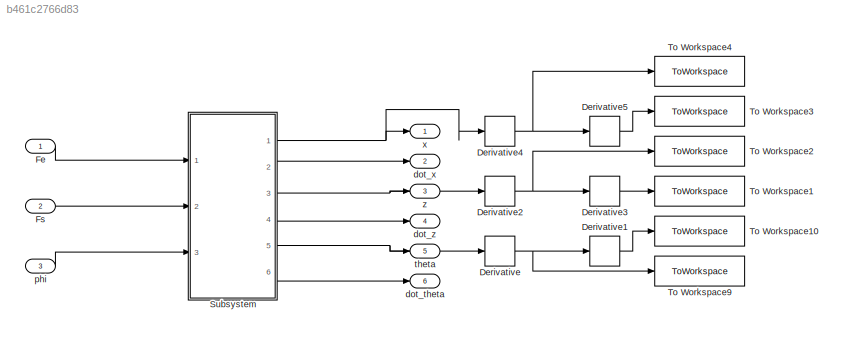
MODEL slx_b461c2766d83
KIND model
CONFIG AbsTol = auto
CONFIG EnableMultiTasking = off
CONFIG FixedStep = auto
CONFIG MaxStep = auto
CONFIG MinStep = auto
CONFIG RelTol = 1e-9
CONFIG SampleTimeConstraint = Unconstrained
CONFIG Solver = VariableStepAuto
CONFIG SolverName = VariableStepAuto
CONFIG StartTime = 0.0
CONFIG StopTime = 50
BLOCK [Derivative] Derivative
BLOCK [Derivative] Derivative1
BLOCK [Derivative] Derivative2
BLOCK [Derivative] Derivative3
BLOCK [Derivative] Derivative4
BLOCK [Derivative] Derivative5
BLOCK [Inport] Fe
  IconDisplay = Port number
BLOCK [Inport] Fs
  IconDisplay = Port number
  Port = 2
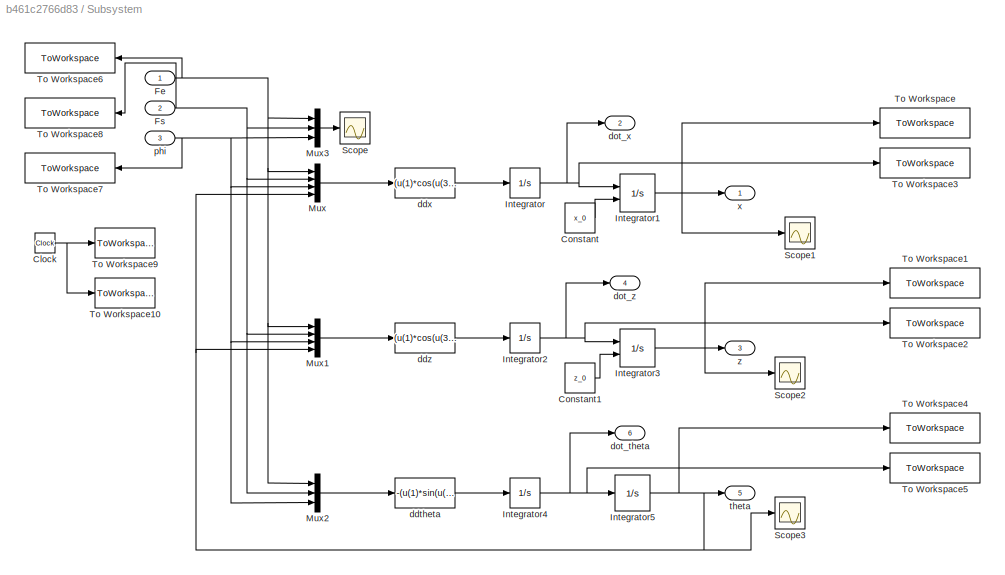
BLOCK [SubSystem] Subsystem
  Ports = [3, 6]
  RequestExecContextInheritance = off
BLOCK [Clock] Subsystem/Clock
BLOCK [Constant] Subsystem/Constant
  Value = x_0
BLOCK [Constant] Subsystem/Constant1
  Value = z_0
BLOCK [Inport] Subsystem/Fe
  IconDisplay = Port number
BLOCK [Inport] Subsystem/Fs
  IconDisplay = Port number
  Port = 2
BLOCK [Integrator] Subsystem/Integrator
  ContinuousStateAttributes = 'x_dot'
  Ports = [1, 1]
BLOCK [Integrator] Subsystem/Integrator1
  ContinuousStateAttributes = 'x'
  InitialConditionSource = external
  Ports = [2, 1]
BLOCK [Integrator] Subsystem/Integrator2
  ContinuousStateAttributes = 'z_dot'
  Ports = [1, 1]
BLOCK [Integrator] Subsystem/Integrator3
  ContinuousStateAttributes = 'z'
  InitialCondition = 50
  InitialConditionSource = external
  LimitOutput = on
  LowerSaturationLimit = 0
  Ports = [2, 1]
BLOCK [Integrator] Subsystem/Integrator4
  ContinuousStateAttributes = 'theta_dot'
  Ports = [1, 1]
BLOCK [Integrator] Subsystem/Integrator5
  Ports = [1, 1]
BLOCK [Mux] Subsystem/Mux
  DisplayOption = bar
  Ports = [4, 1]
BLOCK [Mux] Subsystem/Mux1
  DisplayOption = bar
  Ports = [4, 1]
BLOCK [Mux] Subsystem/Mux2
  DisplayOption = bar
  Inputs = 3
  Ports = [3, 1]
BLOCK [Mux] Subsystem/Mux3
  DisplayOption = bar
  Inputs = 3
  Ports = [3, 1]
BLOCK [Scope] Subsystem/Scope
  Floating = off
  NumInputPorts = 1
  Ports = [1]
  ScopeSpecificationString = Simulink.scopes.TimeScopeBlockCfg('CurrentConfiguration', extmgr.ConfigurationSet(extmgr.Configuration('Core','General UI',true),extmgr.Configuration('Core','Source UI',true),extmgr.Configuration('Sources','WiredSimulink',true),extmgr.Configuration('Visuals','Time Domain',true,'SerializedDisplays',{struct('MinYLimReal','-0.2','MaxYLimReal','0.2','YLabelReal','','MinYLimMag','975067.9392','MaxYLimM...<+1475ch>
BLOCK [Scope] Subsystem/Scope1
  Floating = off
  NumInputPorts = 1
  Ports = [1]
  ScopeSpecificationString = Simulink.scopes.TimeScopeBlockCfg('CurrentConfiguration', extmgr.ConfigurationSet(extmgr.Configuration('Core','General UI',true),extmgr.Configuration('Core','Source UI',true),extmgr.Configuration('Sources','WiredSimulink',true,'DataLoggingVariableName','ScopeData1'),extmgr.Configuration('Visuals','Time Domain',true,'SerializedDisplays',{struct('MinYLimReal','-47.40342','MaxYLimReal','5.26724','YLa...<+1401ch>
BLOCK [Scope] Subsystem/Scope2
  Floating = off
  NumInputPorts = 1
  Ports = [1]
  ScopeSpecificationString = Simulink.scopes.TimeScopeBlockCfg('CurrentConfiguration', extmgr.ConfigurationSet(extmgr.Configuration('Core','General UI',true),extmgr.Configuration('Core','Source UI',true),extmgr.Configuration('Sources','WiredSimulink',true,'DataLoggingVariableName','ScopeData2'),extmgr.Configuration('Visuals','Time Domain',true,'SerializedDisplays',{struct('MinYLimReal','-541.32406','MaxYLimReal','4871.91652',...<+1388ch>
BLOCK [Scope] Subsystem/Scope3
  Floating = off
  NumInputPorts = 1
  Ports = [1]
  ScopeSpecificationString = Simulink.scopes.TimeScopeBlockCfg('CurrentConfiguration', extmgr.ConfigurationSet(extmgr.Configuration('Core','General UI',true),extmgr.Configuration('Core','Source UI',true),extmgr.Configuration('Sources','WiredSimulink',true,'DataLoggingVariableName','ScopeData3'),extmgr.Configuration('Visuals','Time Domain',true,'SerializedDisplays',{struct('MinYLimReal','-119043.34193','MaxYLimReal','559911.36...<+1437ch>
BLOCK [ToWorkspace] Subsystem/To Workspace
  FixptAsFi = on
  MaxDataPoints = inf
  Ports = [1]
  SampleTime = Ts
  VariableName = x
BLOCK [ToWorkspace] Subsystem/To Workspace1
  FixptAsFi = on
  MaxDataPoints = inf
  Ports = [1]
  SampleTime = Ts
  VariableName = z
BLOCK [ToWorkspace] Subsystem/To Workspace10
  FixptAsFi = on
  MaxDataPoints = inf
  Ports = [1]
  SampleTime = Ts
  VariableName = ts
BLOCK [ToWorkspace] Subsystem/To Workspace2
  FixptAsFi = on
  MaxDataPoints = inf
  Ports = [1]
  SampleTime = Ts
  VariableName = dot_z
BLOCK [ToWorkspace] Subsystem/To Workspace3
  FixptAsFi = on
  MaxDataPoints = inf
  Ports = [1]
  SampleTime = Ts
  VariableName = dot_x
BLOCK [ToWorkspace] Subsystem/To Workspace4
  FixptAsFi = on
  MaxDataPoints = inf
  Ports = [1]
  SampleTime = Ts
  VariableName = theta
BLOCK [ToWorkspace] Subsystem/To Workspace5
  FixptAsFi = on
  MaxDataPoints = inf
  Ports = [1]
  SampleTime = Ts
  VariableName = dot_theta
BLOCK [ToWorkspace] Subsystem/To Workspace6
  FixptAsFi = on
  MaxDataPoints = inf
  Ports = [1]
  SampleTime = Ts
  VariableName = thrust
BLOCK [ToWorkspace] Subsystem/To Workspace7
  FixptAsFi = on
  MaxDataPoints = inf
  Ports = [1]
  SampleTime = Ts
  VariableName = gimbal
BLOCK [ToWorkspace] Subsystem/To Workspace8
  FixptAsFi = on
  MaxDataPoints = inf
  Ports = [1]
  SampleTime = Ts
  VariableName = Fs
BLOCK [ToWorkspace] Subsystem/To Workspace9
  FixptAsFi = on
  MaxDataPoints = inf
  Ports = [1]
  SampleTime = -1
  VariableName = t
BLOCK [Fcn] Subsystem/ddtheta
  Expr = -(u(1)*sin(u(3))*(60+1*cos(u(3)))+u(2)*10)/J_T
BLOCK [Fcn] Subsystem/ddx
  Expr = (u(1)*cos(u(3))*sin(u(4))+u(1)*cos(u(4))*sin(u(3))+u(2)*cos(u(4)))/m
BLOCK [Fcn] Subsystem/ddz
  Expr = (u(1)*cos(u(3))*cos(u(4))-u(1)*sin(u(3))*sin(u(4))-u(2)*sin(u(4))-m*g)/m
BLOCK [Outport] Subsystem/dot_theta 
  IconDisplay = Port number
  Port = 6
BLOCK [Outport] Subsystem/dot_x
  IconDisplay = Port number
  Port = 2
BLOCK [Outport] Subsystem/dot_z 
  IconDisplay = Port number
  Port = 4
BLOCK [Inport] Subsystem/phi
  IconDisplay = Port number
  Port = 3
BLOCK [Outport] Subsystem/theta
  IconDisplay = Port number
  Port = 5
BLOCK [Outport] Subsystem/x
  IconDisplay = Port number
BLOCK [Outport] Subsystem/z
  IconDisplay = Port number
  Port = 3
BLOCK [ToWorkspace] To Workspace1
  FixptAsFi = on
  MaxDataPoints = inf
  Ports = [1]
  SampleTime = Ts
  VariableName = d2_z
BLOCK [ToWorkspace] To Workspace10
  FixptAsFi = on
  MaxDataPoints = inf
  Ports = [1]
  SampleTime = Ts
  VariableName = d2_theta
BLOCK [ToWorkspace] To Workspace2
  FixptAsFi = on
  MaxDataPoints = inf
  Ports = [1]
  SampleTime = Ts
  VariableName = d_z
BLOCK [ToWorkspace] To Workspace3
  FixptAsFi = on
  MaxDataPoints = inf
  Ports = [1]
  SampleTime = Ts
  VariableName = d2_x
BLOCK [ToWorkspace] To Workspace4
  FixptAsFi = on
  MaxDataPoints = inf
  Ports = [1]
  SampleTime = Ts
  VariableName = d_x
BLOCK [ToWorkspace] To Workspace9
  FixptAsFi = on
  MaxDataPoints = inf
  Ports = [1]
  SampleTime = Ts
  VariableName = d_theta
BLOCK [Outport] dot_theta 
  IconDisplay = Port number
  Port = 6
BLOCK [Outport] dot_x 
  IconDisplay = Port number
  Port = 2
BLOCK [Outport] dot_z
  IconDisplay = Port number
  Port = 4
BLOCK [Inport] phi
  IconDisplay = Port number
  Port = 3
BLOCK [Outport] theta
  IconDisplay = Port number
  Port = 5
BLOCK [Outport] x
  IconDisplay = Port number
BLOCK [Outport] z
  IconDisplay = Port number
  Port = 3
LINE Derivative1:1 -> To Workspace10:1
NET Derivative2:1 -> Derivative3:1, To Workspace2:1
LINE Derivative3:1 -> To Workspace1:1
NET Derivative4:1 -> Derivative5:1, To Workspace4:1
LINE Derivative5:1 -> To Workspace3:1
NET Derivative:1 -> Derivative1:1, To Workspace9:1
LINE Fe:1 -> Subsystem:1
LINE Fs:1 -> Subsystem:2
NET Subsystem/Clock:1 -> Subsystem/To Workspace10:1, Subsystem/To Workspace9:1
LINE Subsystem/Constant1:1 -> Subsystem/Integrator3:2
LINE Subsystem/Constant:1 -> Subsystem/Integrator1:2
NET Subsystem/Fe:1 -> Subsystem/Mux1:1, Subsystem/Mux2:1, Subsystem/Mux3:1, Subsystem/Mux:1, Subsystem/To Workspace6:1
NET Subsystem/Fs:1 -> Subsystem/Mux1:2, Subsystem/Mux2:2, Subsystem/Mux3:2, Subsystem/Mux:2, Subsystem/To Workspace8:1
NET Subsystem/Integrator1:1 -> Subsystem/Scope1:1, Subsystem/To Workspace:1, Subsystem/x:1
NET Subsystem/Integrator2:1 -> Subsystem/Integrator3:1, Subsystem/To Workspace2:1, Subsystem/dot_z :1
NET Subsystem/Integrator3:1 -> Subsystem/Scope2:1, Subsystem/To Workspace1:1, Subsystem/z:1
NET Subsystem/Integrator4:1 -> Subsystem/Integrator5:1, Subsystem/To Workspace5:1, Subsystem/dot_theta :1
NET Subsystem/Integrator5:1 -> Subsystem/Mux1:4, Subsystem/Mux:4, Subsystem/Scope3:1, Subsystem/To Workspace4:1, Subsystem/theta:1
NET Subsystem/Integrator:1 -> Subsystem/Integrator1:1, Subsystem/To Workspace3:1, Subsystem/dot_x:1
LINE Subsystem/Mux1:1 -> Subsystem/ddz:1
LINE Subsystem/Mux2:1 -> Subsystem/ddtheta:1
LINE Subsystem/Mux3:1 -> Subsystem/Scope:1
LINE Subsystem/Mux:1 -> Subsystem/ddx:1
LINE Subsystem/ddtheta:1 -> Subsystem/Integrator4:1
LINE Subsystem/ddx:1 -> Subsystem/Integrator:1
LINE Subsystem/ddz:1 -> Subsystem/Integrator2:1
NET Subsystem/phi:1 -> Subsystem/Mux1:3, Subsystem/Mux2:3, Subsystem/Mux3:3, Subsystem/Mux:3, Subsystem/To Workspace7:1
NET Subsystem:1 -> Derivative4:1, x:1
LINE Subsystem:2 -> dot_x :1
NET Subsystem:3 -> Derivative2:1, z:1
LINE Subsystem:4 -> dot_z:1
NET Subsystem:5 -> Derivative:1, theta:1
LINE Subsystem:6 -> dot_theta :1
LINE phi:1 -> Subsystem:3
note: NET lines group one-source signal fan-out (src -> all destinations, sorted); 1:1 wires keep LINE
